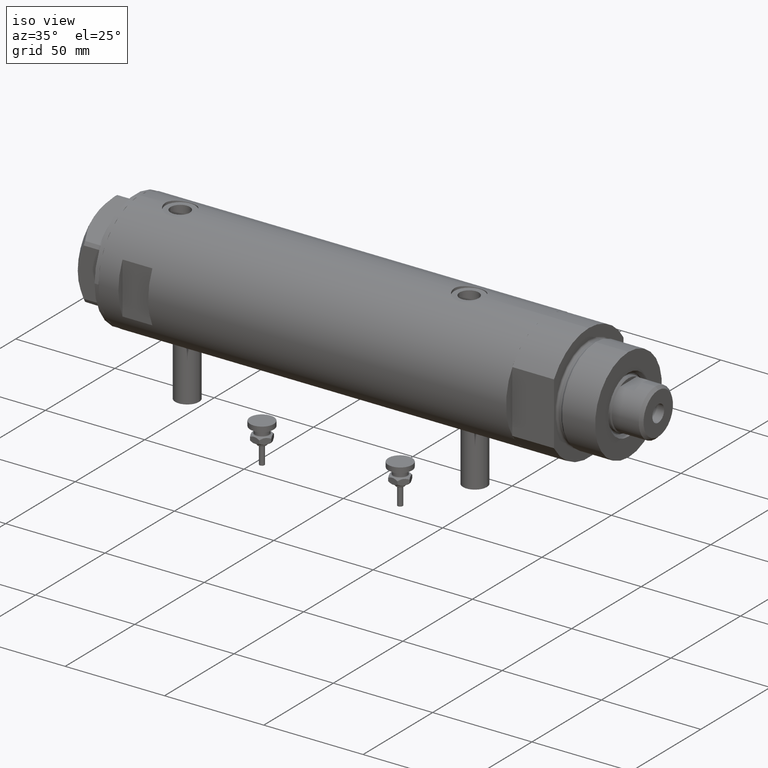
[diagram: clean part render]
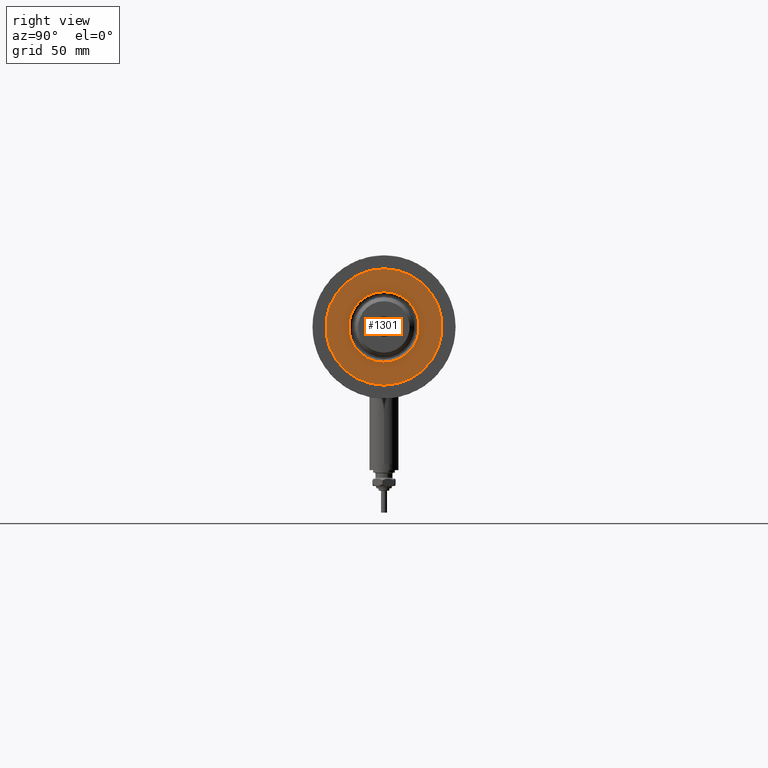
[diagram: tour spotlight — one face highlighted and labeled with its STEP entity id]
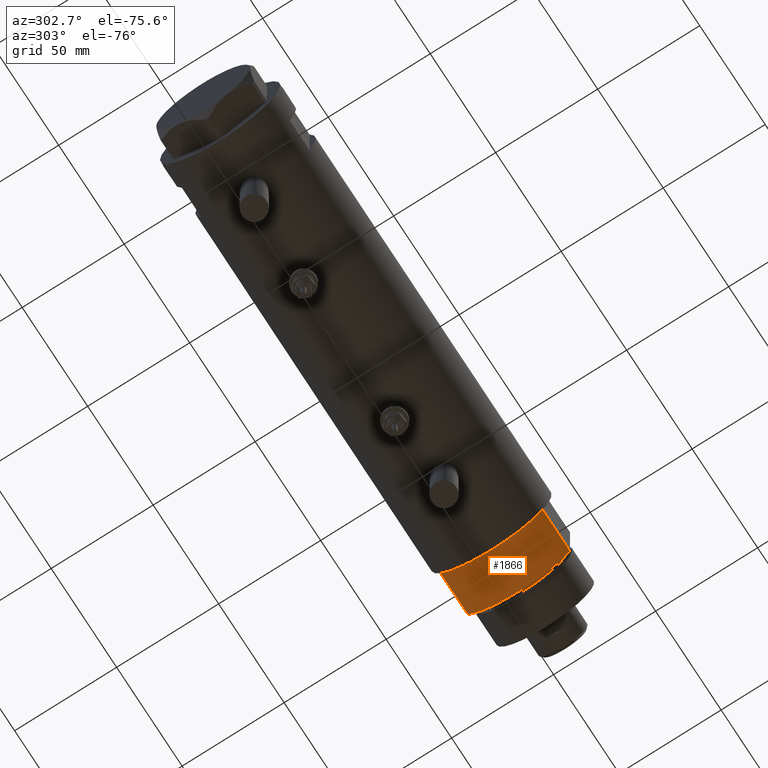
[diagram: tour spotlight — one face highlighted and labeled with its STEP entity id]
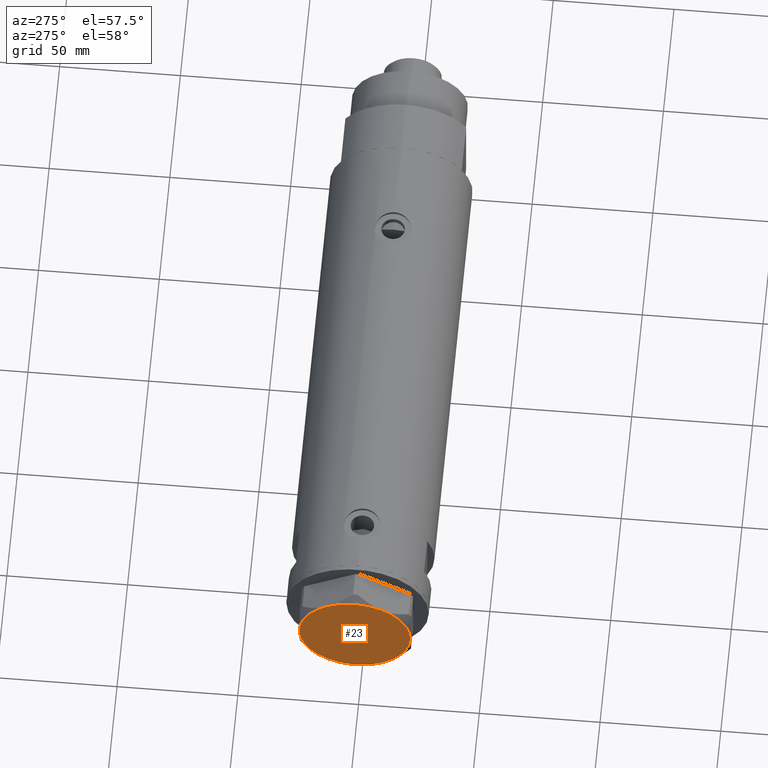
[diagram: tour spotlight — one face highlighted and labeled with its STEP entity id]
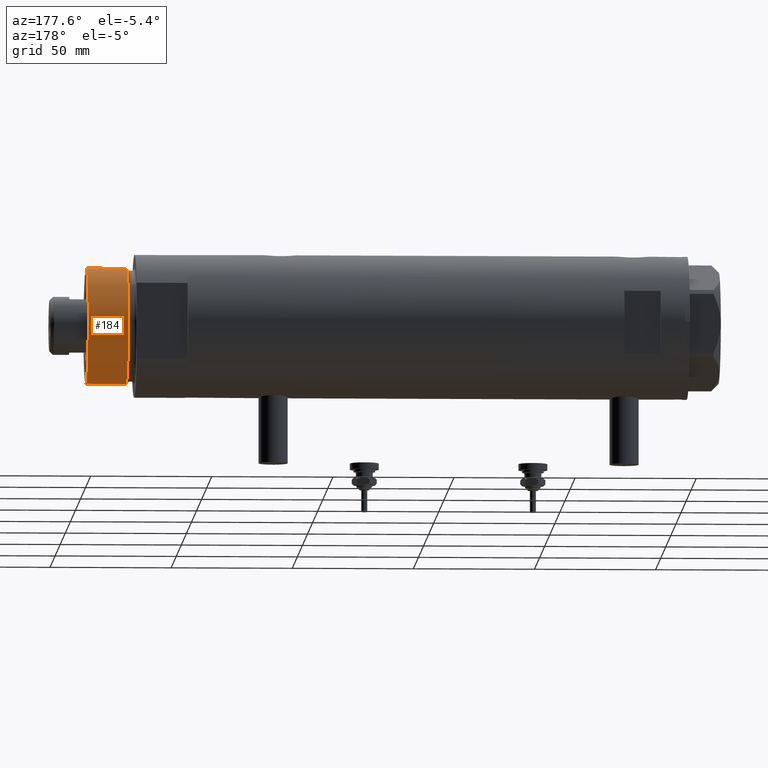
[diagram: tour spotlight — one face highlighted and labeled with its STEP entity id]
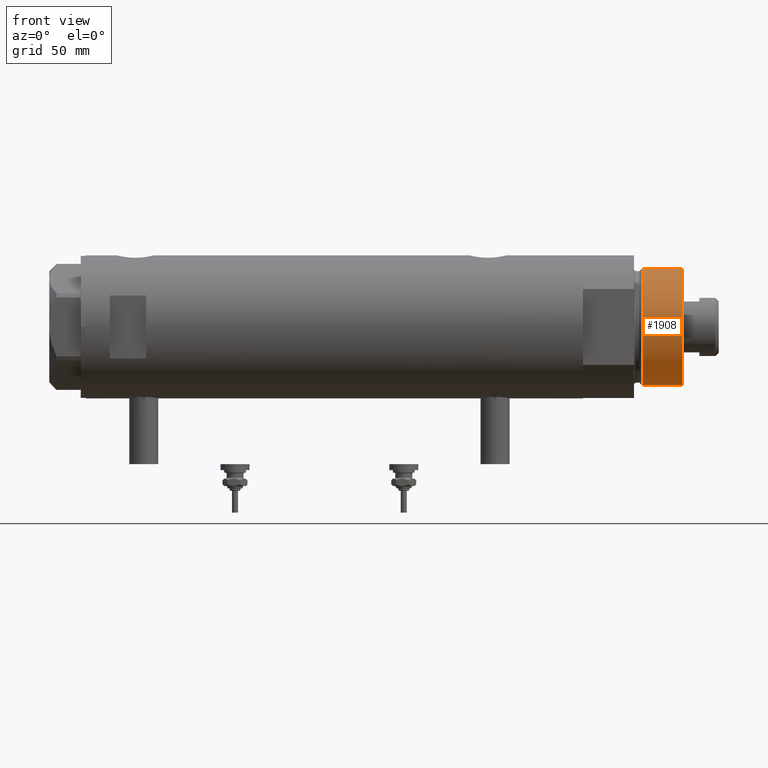
[diagram: tour spotlight — one face highlighted and labeled with its STEP entity id]
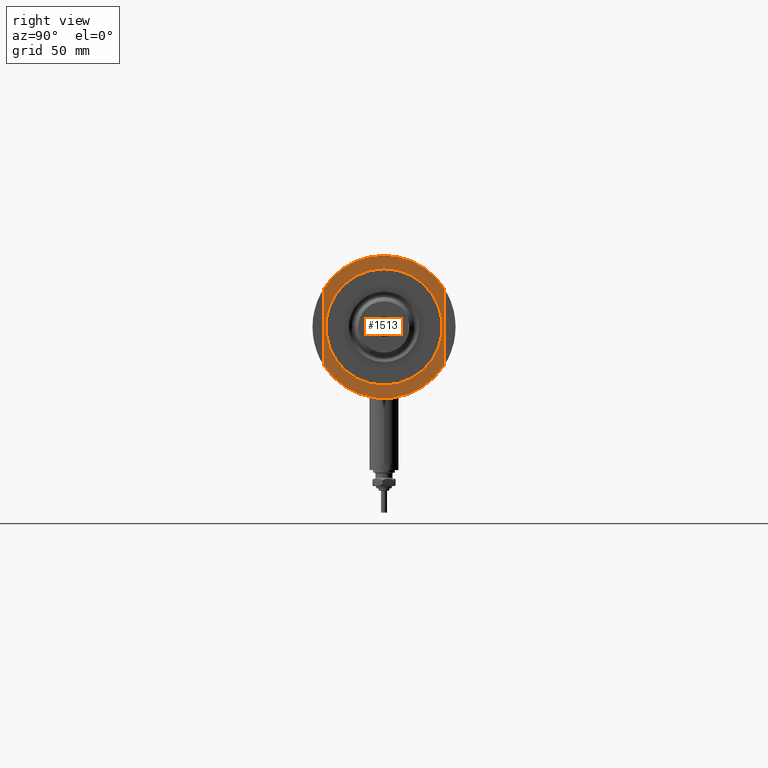
[diagram: tour spotlight — one face highlighted and labeled with its STEP entity id]
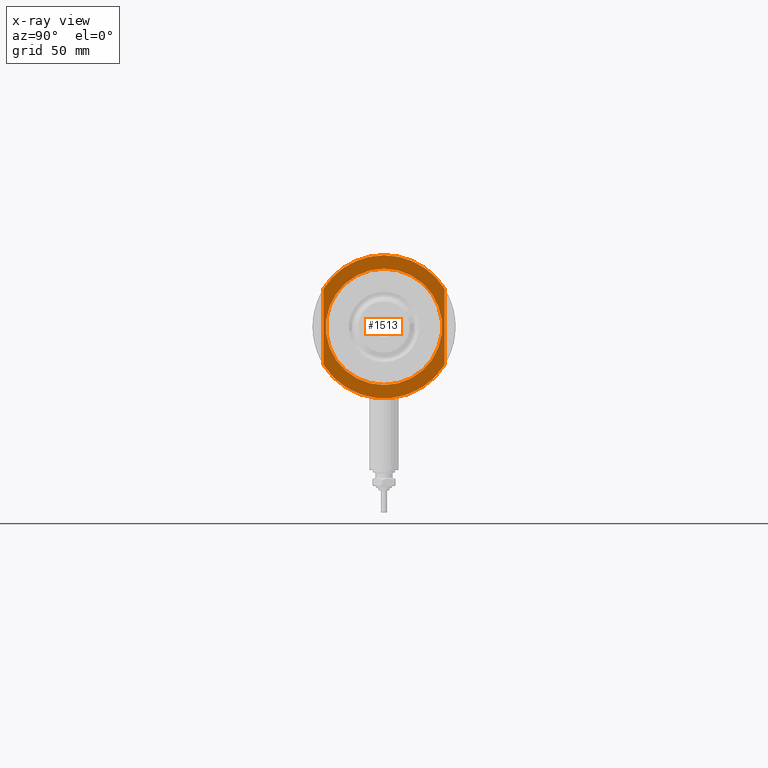
[diagram: x-ray of the same camera — body ghosted, this tour face saturated]
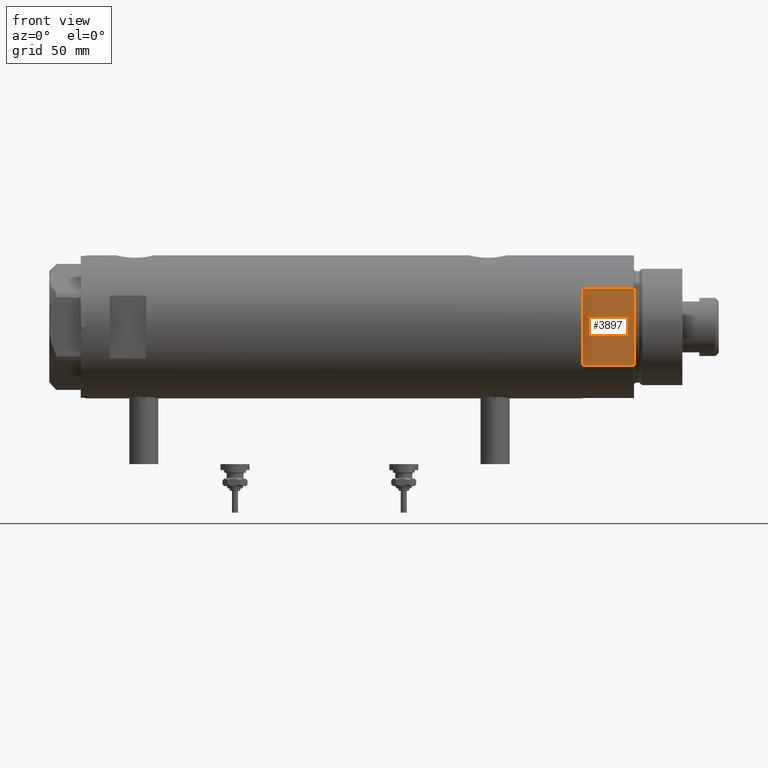
[diagram: tour spotlight — one face highlighted and labeled with its STEP entity id]
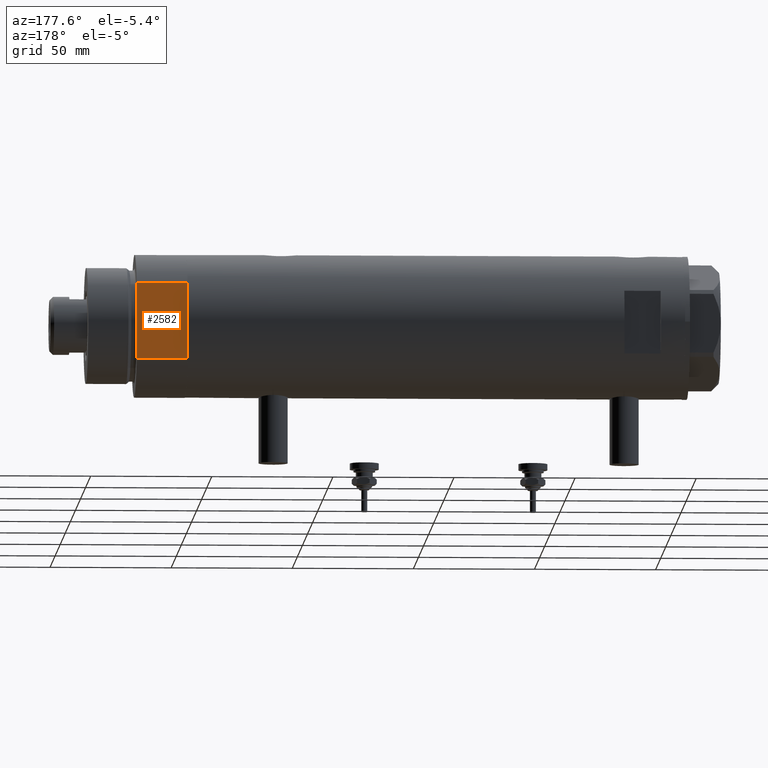
[diagram: tour spotlight — one face highlighted and labeled with its STEP entity id]
A machine part: a face-by-face anatomy tour. The part has 212 B-rep faces; the first image is the clean iso view, then the 8 largest visible faces are spotlighted one at a time (largest first), each with its STEP entity span.

Face 1 — right view, entity #1301. In plain terms, the highlighted planar face has unit normal (1, 0, -0).
Definition (entity closure, byte-faithful):
#131 = FACE_BOUND ( 'NONE', #3954, .T. ) ;
#237 = DIRECTION ( 'NONE',  ( 0.000000000000000000, 0.000000000000000000, 1.000000000000000000 ) ) ;
#608 = CARTESIAN_POINT ( 'NONE',  ( 14.54999999999997939, 0.000000000000000000, 41.00000000000000000 ) ) ;
#717 = DIRECTION ( 'NONE',  ( 1.000000000000000000, 0.000000000000000000, 0.000000000000000000 ) ) ;
#769 = CIRCLE ( 'NONE', #1874, 14.54999999999997939 ) ;
#851 = CIRCLE ( 'NONE', #3218, 14.54999999999997939 ) ;
#1301 = ADVANCED_FACE ( 'NONE', ( #131, #5593 ), #2434, .T. ) ;
#1467 = CARTESIAN_POINT ( 'NONE',  ( 0.000000000000000000, 0.000000000000000000, 41.00000000000000000 ) ) ;
#1539 = ORIENTED_EDGE ( 'NONE', *, *, #2952, .T. ) ;
#1598 = CIRCLE ( 'NONE', #4926, 24.00000000000000355 ) ;
#1623 = CARTESIAN_POINT ( 'NONE',  ( 0.000000000000000000, 0.000000000000000000, 41.00000000000000000 ) ) ;
#1677 = EDGE_CURVE ( 'NONE', #3141, #5667, #2190, .T. ) ;
#1724 = DIRECTION ( 'NONE',  ( 0.000000000000000000, 0.000000000000000000, 1.000000000000000000 ) ) ;
#1747 = VERTEX_POINT ( 'NONE', #4541 ) ;
#1790 = CARTESIAN_POINT ( 'NONE',  ( 0.000000000000000000, 0.000000000000000000, 41.00000000000000000 ) ) ;
#1796 = ORIENTED_EDGE ( 'NONE', *, *, #3267, .T. ) ;
#1874 = AXIS2_PLACEMENT_3D ( 'NONE', #1623, #4471, #717 ) ;
#2059 = DIRECTION ( 'NONE',  ( 1.000000000000000000, 0.000000000000000000, 0.000000000000000000 ) ) ;
#2190 = CIRCLE ( 'NONE', #4755, 24.00000000000000355 ) ;
#2279 = ORIENTED_EDGE ( 'NONE', *, *, #2518, .T. ) ;
#2434 = PLANE ( 'NONE',  #4089 ) ;
#2518 = EDGE_CURVE ( 'NONE', #1747, #2779, #769, .T. ) ;
#2779 = VERTEX_POINT ( 'NONE', #608 ) ;
#2952 = EDGE_CURVE ( 'NONE', #5667, #3141, #1598, .T. ) ;
#3140 = DIRECTION ( 'NONE',  ( 1.000000000000000000, 0.000000000000000000, 0.000000000000000000 ) ) ;
#3141 = VERTEX_POINT ( 'NONE', #3800 ) ;
#3218 = AXIS2_PLACEMENT_3D ( 'NONE', #5860, #4427, #5341 ) ;
#3267 = EDGE_CURVE ( 'NONE', #2779, #1747, #851, .T. ) ;
#3800 = CARTESIAN_POINT ( 'NONE',  ( -24.00000000000000355, 0.000000000000000000, 41.00000000000000000 ) ) ;
#3954 = EDGE_LOOP ( 'NONE', ( #1796, #2279 ) ) ;
#4089 = AXIS2_PLACEMENT_3D ( 'NONE', #1467, #4698, #5192 ) ;
#4343 = ORIENTED_EDGE ( 'NONE', *, *, #1677, .T. ) ;
#4427 = DIRECTION ( 'NONE',  ( -0.000000000000000000, -0.000000000000000000, -1.000000000000000000 ) ) ;
#4471 = DIRECTION ( 'NONE',  ( -0.000000000000000000, -0.000000000000000000, -1.000000000000000000 ) ) ;
#4541 = CARTESIAN_POINT ( 'NONE',  ( -14.54999999999997939, 1.781861092759396721E-15, 41.00000000000000000 ) ) ;
#4698 = DIRECTION ( 'NONE',  ( 0.000000000000000000, 0.000000000000000000, 1.000000000000000000 ) ) ;
#4755 = AXIS2_PLACEMENT_3D ( 'NONE', #4912, #1724, #3140 ) ;
#4912 = CARTESIAN_POINT ( 'NONE',  ( 0.000000000000000000, 0.000000000000000000, 41.00000000000000000 ) ) ;
#4926 = AXIS2_PLACEMENT_3D ( 'NONE', #1790, #237, #2059 ) ;
#5192 = DIRECTION ( 'NONE',  ( 1.000000000000000000, 0.000000000000000000, -0.000000000000000000 ) ) ;
#5341 = DIRECTION ( 'NONE',  ( 1.000000000000000000, 0.000000000000000000, 0.000000000000000000 ) ) ;
#5485 = CARTESIAN_POINT ( 'NONE',  ( 24.00000000000000355, 2.939152317953648289E-15, 41.00000000000000000 ) ) ;
#5593 = FACE_OUTER_BOUND ( 'NONE', #5815, .T. ) ;
#5667 = VERTEX_POINT ( 'NONE', #5485 ) ;
#5815 = EDGE_LOOP ( 'NONE', ( #4343, #1539 ) ) ;
#5860 = CARTESIAN_POINT ( 'NONE',  ( 0.000000000000000000, 0.000000000000000000, 41.00000000000000000 ) ) ;

Face 2 — auxiliary view, entity #1866. In plain terms, the highlighted cylindrical surface (partial cylindrical patch) has radius 29.5 mm, axis along (-1, -0, 0).
Definition (entity closure, byte-faithful):
#39 = CARTESIAN_POINT ( 'NONE',  ( 0.000000000000000000, 0.000000000000000000, 0.000000000000000000 ) ) ;
#105 = CARTESIAN_POINT ( 'NONE',  ( 15.66045976336583401, -25.00000000000000000, 0.000000000000000000 ) ) ;
#315 = DIRECTION ( 'NONE',  ( 1.000000000000000000, 0.000000000000000000, 0.000000000000000000 ) ) ;
#377 = DIRECTION ( 'NONE',  ( 0.000000000000000000, 0.000000000000000000, 1.000000000000000000 ) ) ;
#417 = VERTEX_POINT ( 'NONE', #4877 ) ;
#507 = CARTESIAN_POINT ( 'NONE',  ( 15.66045976336582690, 25.00000000000000000, 0.000000000000000000 ) ) ;
#549 = DIRECTION ( 'NONE',  ( -0.000000000000000000, -0.000000000000000000, -1.000000000000000000 ) ) ;
#643 = FACE_OUTER_BOUND ( 'NONE', #3332, .T. ) ;
#1086 = ORIENTED_EDGE ( 'NONE', *, *, #4707, .F. ) ;
#1339 = AXIS2_PLACEMENT_3D ( 'NONE', #3059, #377, #315 ) ;
#1440 = VERTEX_POINT ( 'NONE', #105 ) ;
#1772 = LINE ( 'NONE', #3213, #2095 ) ;
#1847 = DIRECTION ( 'NONE',  ( 0.000000000000000000, 0.000000000000000000, 1.000000000000000000 ) ) ;
#1866 = ADVANCED_FACE ( 'NONE', ( #643 ), #3283, .T. ) ;
#1939 = ORIENTED_EDGE ( 'NONE', *, *, #3277, .F. ) ;
#2095 = VECTOR ( 'NONE', #5054, 1000.000000000000000 ) ;
#2429 = CARTESIAN_POINT ( 'NONE',  ( 0.000000000000000000, 0.000000000000000000, 21.00000000000000000 ) ) ;
#2586 = CARTESIAN_POINT ( 'NONE',  ( 15.66045976336583401, -25.00000000000000000, 0.000000000000000000 ) ) ;
#2987 = CARTESIAN_POINT ( 'NONE',  ( 15.66045976336583045, -25.00000000000000000, 21.00000000000000355 ) ) ;
#3041 = VERTEX_POINT ( 'NONE', #507 ) ;
#3059 = CARTESIAN_POINT ( 'NONE',  ( 0.000000000000000000, 0.000000000000000000, 21.00000000000000000 ) ) ;
#3213 = CARTESIAN_POINT ( 'NONE',  ( 15.66045976336583401, 25.00000000000000000, 0.000000000000000000 ) ) ;
#3277 = EDGE_CURVE ( 'NONE', #4163, #417, #4743, .T. ) ;
#3283 = CYLINDRICAL_SURFACE ( 'NONE', #5829, 29.50000000000000355 ) ;
#3313 = EDGE_CURVE ( 'NONE', #1440, #3041, #5239, .T. ) ;
#3332 = EDGE_LOOP ( 'NONE', ( #1939, #1086, #3712, #5016 ) ) ;
#3712 = ORIENTED_EDGE ( 'NONE', *, *, #3313, .T. ) ;
#3734 = DIRECTION ( 'NONE',  ( -1.000000000000000000, 0.000000000000000000, 0.000000000000000000 ) ) ;
#3864 = LINE ( 'NONE', #2586, #5924 ) ;
#3892 = DIRECTION ( 'NONE',  ( -0.000000000000000000, -0.000000000000000000, 1.000000000000000000 ) ) ;
#4150 = DIRECTION ( 'NONE',  ( 1.000000000000000000, 0.000000000000000000, 0.000000000000000000 ) ) ;
#4163 = VERTEX_POINT ( 'NONE', #2987 ) ;
#4331 = EDGE_CURVE ( 'NONE', #3041, #417, #1772, .T. ) ;
#4707 = EDGE_CURVE ( 'NONE', #1440, #4163, #3864, .T. ) ;
#4743 = CIRCLE ( 'NONE', #1339, 29.50000000000000355 ) ;
#4877 = CARTESIAN_POINT ( 'NONE',  ( 15.66045976336583045, 24.99999999999999645, 20.99999999999999645 ) ) ;
#4947 = AXIS2_PLACEMENT_3D ( 'NONE', #39, #1847, #4150 ) ;
#5016 = ORIENTED_EDGE ( 'NONE', *, *, #4331, .T. ) ;
#5054 = DIRECTION ( 'NONE',  ( -0.000000000000000000, -0.000000000000000000, 1.000000000000000000 ) ) ;
#5239 = CIRCLE ( 'NONE', #4947, 29.50000000000000355 ) ;
#5829 = AXIS2_PLACEMENT_3D ( 'NONE', #2429, #549, #3734 ) ;
#5924 = VECTOR ( 'NONE', #3892, 1000.000000000000000 ) ;

Face 3 — auxiliary view, entity #23. In plain terms, the highlighted planar face has unit normal (-1, -0, 0).
Definition (entity closure, byte-faithful):
#9 = EDGE_CURVE ( 'NONE', #5252, #21, #4737, .T. ) ;
#21 = VERTEX_POINT ( 'NONE', #1585 ) ;
#23 = ADVANCED_FACE ( 'NONE', ( #2503 ), #3003, .T. ) ;
#56 = DIRECTION ( 'NONE',  ( 0.000000000000000000, 0.000000000000000000, 1.000000000000000000 ) ) ;
#124 = CARTESIAN_POINT ( 'NONE',  ( -11.50000000000004441, 19.91858428704211548, 13.00000000000000000 ) ) ;
#323 = ORIENTED_EDGE ( 'NONE', *, *, #841, .T. ) ;
#580 = DIRECTION ( 'NONE',  ( 0.000000000000000000, 0.000000000000000000, 1.000000000000000000 ) ) ;
#841 = EDGE_CURVE ( 'NONE', #2939, #875, #2938, .T. ) ;
#875 = VERTEX_POINT ( 'NONE', #4959 ) ;
#997 = ORIENTED_EDGE ( 'NONE', *, *, #5637, .T. ) ;
#1052 = CIRCLE ( 'NONE', #1712, 23.00000000000004619 ) ;
#1057 = CIRCLE ( 'NONE', #1159, 23.00000000000004619 ) ;
#1159 = AXIS2_PLACEMENT_3D ( 'NONE', #1983, #580, #2396 ) ;
#1201 = DIRECTION ( 'NONE',  ( 1.000000000000000000, 0.000000000000000000, 0.000000000000000000 ) ) ;
#1585 = CARTESIAN_POINT ( 'NONE',  ( 11.49999999999990408, 19.91858428704219364, 13.00000000000000000 ) ) ;
#1712 = AXIS2_PLACEMENT_3D ( 'NONE', #2098, #3971, #3049 ) ;
#1887 = DIRECTION ( 'NONE',  ( 1.000000000000000000, 0.000000000000000000, 0.000000000000000000 ) ) ;
#1983 = CARTESIAN_POINT ( 'NONE',  ( 0.000000000000000000, 0.000000000000000000, 13.00000000000000000 ) ) ;
#1997 = CARTESIAN_POINT ( 'NONE',  ( 0.000000000000000000, 0.000000000000000000, 13.00000000000000000 ) ) ;
#2098 = CARTESIAN_POINT ( 'NONE',  ( 0.000000000000000000, 0.000000000000000000, 13.00000000000000000 ) ) ;
#2169 = AXIS2_PLACEMENT_3D ( 'NONE', #4368, #4253, #3801 ) ;
#2185 = ORIENTED_EDGE ( 'NONE', *, *, #3899, .T. ) ;
#2186 = AXIS2_PLACEMENT_3D ( 'NONE', #3190, #56, #1887 ) ;
#2396 = DIRECTION ( 'NONE',  ( 1.000000000000000000, 0.000000000000000000, 0.000000000000000000 ) ) ;
#2467 = VERTEX_POINT ( 'NONE', #2683 ) ;
#2480 = CARTESIAN_POINT ( 'NONE',  ( 0.000000000000000000, 0.000000000000000000, 13.00000000000000000 ) ) ;
#2503 = FACE_OUTER_BOUND ( 'NONE', #2667, .T. ) ;
#2667 = EDGE_LOOP ( 'NONE', ( #997, #5319, #3297, #2734, #323, #2185 ) ) ;
#2680 = AXIS2_PLACEMENT_3D ( 'NONE', #4307, #4033, #3967 ) ;
#2683 = CARTESIAN_POINT ( 'NONE',  ( 11.50000000000018296, -19.91858428704203732, 13.00000000000000000 ) ) ;
#2734 = ORIENTED_EDGE ( 'NONE', *, *, #3594, .T. ) ;
#2753 = CIRCLE ( 'NONE', #2186, 23.00000000000004619 ) ;
#2770 = CIRCLE ( 'NONE', #2680, 23.00000000000004619 ) ;
#2938 = CIRCLE ( 'NONE', #4950, 23.00000000000004619 ) ;
#2939 = VERTEX_POINT ( 'NONE', #4776 ) ;
#3003 = PLANE ( 'NONE',  #2169 ) ;
#3049 = DIRECTION ( 'NONE',  ( 1.000000000000000000, 0.000000000000000000, 0.000000000000000000 ) ) ;
#3190 = CARTESIAN_POINT ( 'NONE',  ( 0.000000000000000000, 0.000000000000000000, 13.00000000000000000 ) ) ;
#3297 = ORIENTED_EDGE ( 'NONE', *, *, #3972, .T. ) ;
#3496 = AXIS2_PLACEMENT_3D ( 'NONE', #1997, #4825, #1201 ) ;
#3594 = EDGE_CURVE ( 'NONE', #5413, #2939, #1052, .T. ) ;
#3801 = DIRECTION ( 'NONE',  ( 1.000000000000000000, 0.000000000000000000, -0.000000000000000000 ) ) ;
#3813 = DIRECTION ( 'NONE',  ( 1.000000000000000000, 0.000000000000000000, 0.000000000000000000 ) ) ;
#3899 = EDGE_CURVE ( 'NONE', #875, #2467, #2753, .T. ) ;
#3967 = DIRECTION ( 'NONE',  ( 1.000000000000000000, 0.000000000000000000, 0.000000000000000000 ) ) ;
#3971 = DIRECTION ( 'NONE',  ( 0.000000000000000000, 0.000000000000000000, 1.000000000000000000 ) ) ;
#3972 = EDGE_CURVE ( 'NONE', #21, #5413, #1057, .T. ) ;
#4033 = DIRECTION ( 'NONE',  ( 0.000000000000000000, 0.000000000000000000, 1.000000000000000000 ) ) ;
#4038 = CARTESIAN_POINT ( 'NONE',  ( 22.99999999999995026, 2.373657066004705010E-13, 13.00000000000000000 ) ) ;
#4253 = DIRECTION ( 'NONE',  ( 0.000000000000000000, 0.000000000000000000, 1.000000000000000000 ) ) ;
#4298 = DIRECTION ( 'NONE',  ( 0.000000000000000000, 0.000000000000000000, 1.000000000000000000 ) ) ;
#4307 = CARTESIAN_POINT ( 'NONE',  ( 0.000000000000000000, 0.000000000000000000, 13.00000000000000000 ) ) ;
#4368 = CARTESIAN_POINT ( 'NONE',  ( 0.000000000000000000, 0.000000000000000000, 13.00000000000000000 ) ) ;
#4737 = CIRCLE ( 'NONE', #3496, 23.00000000000004619 ) ;
#4776 = CARTESIAN_POINT ( 'NONE',  ( -23.00000000000004619, -8.112498833180673323E-14, 13.00000000000000000 ) ) ;
#4825 = DIRECTION ( 'NONE',  ( 0.000000000000000000, 0.000000000000000000, 1.000000000000000000 ) ) ;
#4950 = AXIS2_PLACEMENT_3D ( 'NONE', #2480, #4298, #3813 ) ;
#4959 = CARTESIAN_POINT ( 'NONE',  ( -11.49999999999990585, -19.91858428704219364, 13.00000000000000000 ) ) ;
#5252 = VERTEX_POINT ( 'NONE', #4038 ) ;
#5319 = ORIENTED_EDGE ( 'NONE', *, *, #9, .T. ) ;
#5413 = VERTEX_POINT ( 'NONE', #124 ) ;
#5637 = EDGE_CURVE ( 'NONE', #2467, #5252, #2770, .T. ) ;

Face 4 — auxiliary view, entity #184. In plain terms, the highlighted cylindrical surface (partial cylindrical patch) has radius 24 mm, axis along (-1, -0, 0).
Definition (entity closure, byte-faithful):
#35 = DIRECTION ( 'NONE',  ( -0.000000000000000000, -0.000000000000000000, -1.000000000000000000 ) ) ;
#143 = ORIENTED_EDGE ( 'NONE', *, *, #2952, .F. ) ;
#184 = ADVANCED_FACE ( 'NONE', ( #1346 ), #2643, .T. ) ;
#237 = DIRECTION ( 'NONE',  ( 0.000000000000000000, 0.000000000000000000, 1.000000000000000000 ) ) ;
#264 = CARTESIAN_POINT ( 'NONE',  ( -24.00000000000000355, 0.000000000000000000, 24.37384048104054557 ) ) ;
#283 = DIRECTION ( 'NONE',  ( -0.000000000000000000, -0.000000000000000000, 1.000000000000000000 ) ) ;
#341 = DIRECTION ( 'NONE',  ( -1.000000000000000000, 0.000000000000000000, 0.000000000000000000 ) ) ;
#472 = VERTEX_POINT ( 'NONE', #264 ) ;
#483 = VECTOR ( 'NONE', #1340, 1000.000000000000000 ) ;
#495 = LINE ( 'NONE', #5430, #483 ) ;
#1236 = ORIENTED_EDGE ( 'NONE', *, *, #5418, .F. ) ;
#1340 = DIRECTION ( 'NONE',  ( -0.000000000000000000, -0.000000000000000000, -1.000000000000000000 ) ) ;
#1346 = FACE_OUTER_BOUND ( 'NONE', #5019, .T. ) ;
#1353 = CIRCLE ( 'NONE', #3611, 24.00000000000000355 ) ;
#1422 = AXIS2_PLACEMENT_3D ( 'NONE', #4889, #5825, #341 ) ;
#1598 = CIRCLE ( 'NONE', #4926, 24.00000000000000355 ) ;
#1790 = CARTESIAN_POINT ( 'NONE',  ( 0.000000000000000000, 0.000000000000000000, 41.00000000000000000 ) ) ;
#2059 = DIRECTION ( 'NONE',  ( 1.000000000000000000, 0.000000000000000000, 0.000000000000000000 ) ) ;
#2554 = CARTESIAN_POINT ( 'NONE',  ( 0.000000000000000000, 0.000000000000000000, 24.37384048104054557 ) ) ;
#2643 = CYLINDRICAL_SURFACE ( 'NONE', #1422, 24.00000000000000355 ) ;
#2952 = EDGE_CURVE ( 'NONE', #5667, #3141, #1598, .T. ) ;
#3141 = VERTEX_POINT ( 'NONE', #3800 ) ;
#3611 = AXIS2_PLACEMENT_3D ( 'NONE', #2554, #283, #4799 ) ;
#3784 = LINE ( 'NONE', #5118, #5559 ) ;
#3800 = CARTESIAN_POINT ( 'NONE',  ( -24.00000000000000355, 0.000000000000000000, 41.00000000000000000 ) ) ;
#4145 = CARTESIAN_POINT ( 'NONE',  ( 24.00000000000000355, 2.939152317953648289E-15, 24.37384048104054557 ) ) ;
#4467 = ORIENTED_EDGE ( 'NONE', *, *, #4628, .T. ) ;
#4628 = EDGE_CURVE ( 'NONE', #5390, #472, #1353, .T. ) ;
#4799 = DIRECTION ( 'NONE',  ( 1.000000000000000000, 0.000000000000000000, 0.000000000000000000 ) ) ;
#4889 = CARTESIAN_POINT ( 'NONE',  ( 0.000000000000000000, 0.000000000000000000, 41.00000000000000000 ) ) ;
#4926 = AXIS2_PLACEMENT_3D ( 'NONE', #1790, #237, #2059 ) ;
#5019 = EDGE_LOOP ( 'NONE', ( #143, #5751, #4467, #1236 ) ) ;
#5118 = CARTESIAN_POINT ( 'NONE',  ( -24.00000000000000355, 0.000000000000000000, 41.00000000000000000 ) ) ;
#5266 = EDGE_CURVE ( 'NONE', #5667, #5390, #495, .T. ) ;
#5390 = VERTEX_POINT ( 'NONE', #4145 ) ;
#5418 = EDGE_CURVE ( 'NONE', #3141, #472, #3784, .T. ) ;
#5430 = CARTESIAN_POINT ( 'NONE',  ( 24.00000000000000355, 2.939152317953648289E-15, 41.00000000000000000 ) ) ;
#5485 = CARTESIAN_POINT ( 'NONE',  ( 24.00000000000000355, 2.939152317953648289E-15, 41.00000000000000000 ) ) ;
#5559 = VECTOR ( 'NONE', #35, 1000.000000000000000 ) ;
#5667 = VERTEX_POINT ( 'NONE', #5485 ) ;
#5751 = ORIENTED_EDGE ( 'NONE', *, *, #5266, .T. ) ;
#5825 = DIRECTION ( 'NONE',  ( -0.000000000000000000, -0.000000000000000000, -1.000000000000000000 ) ) ;

Face 5 — front view, entity #1908. In plain terms, the highlighted cylindrical surface (partial cylindrical patch) has radius 24 mm, axis along (-1, -0, 0).
Definition (entity closure, byte-faithful):
#35 = DIRECTION ( 'NONE',  ( -0.000000000000000000, -0.000000000000000000, -1.000000000000000000 ) ) ;
#41 = DIRECTION ( 'NONE',  ( 1.000000000000000000, 0.000000000000000000, 0.000000000000000000 ) ) ;
#264 = CARTESIAN_POINT ( 'NONE',  ( -24.00000000000000355, 0.000000000000000000, 24.37384048104054557 ) ) ;
#472 = VERTEX_POINT ( 'NONE', #264 ) ;
#483 = VECTOR ( 'NONE', #1340, 1000.000000000000000 ) ;
#495 = LINE ( 'NONE', #5430, #483 ) ;
#523 = DIRECTION ( 'NONE',  ( -0.000000000000000000, -0.000000000000000000, -1.000000000000000000 ) ) ;
#1099 = EDGE_LOOP ( 'NONE', ( #1947, #3839, #5452, #2593 ) ) ;
#1340 = DIRECTION ( 'NONE',  ( -0.000000000000000000, -0.000000000000000000, -1.000000000000000000 ) ) ;
#1677 = EDGE_CURVE ( 'NONE', #3141, #5667, #2190, .T. ) ;
#1724 = DIRECTION ( 'NONE',  ( 0.000000000000000000, 0.000000000000000000, 1.000000000000000000 ) ) ;
#1786 = CARTESIAN_POINT ( 'NONE',  ( 0.000000000000000000, 0.000000000000000000, 24.37384048104054557 ) ) ;
#1908 = ADVANCED_FACE ( 'NONE', ( #2788 ), #2365, .T. ) ;
#1947 = ORIENTED_EDGE ( 'NONE', *, *, #5266, .F. ) ;
#2190 = CIRCLE ( 'NONE', #4755, 24.00000000000000355 ) ;
#2339 = DIRECTION ( 'NONE',  ( -1.000000000000000000, 0.000000000000000000, 0.000000000000000000 ) ) ;
#2365 = CYLINDRICAL_SURFACE ( 'NONE', #4784, 24.00000000000000355 ) ;
#2399 = CARTESIAN_POINT ( 'NONE',  ( 0.000000000000000000, 0.000000000000000000, 41.00000000000000000 ) ) ;
#2593 = ORIENTED_EDGE ( 'NONE', *, *, #4858, .T. ) ;
#2788 = FACE_OUTER_BOUND ( 'NONE', #1099, .T. ) ;
#3140 = DIRECTION ( 'NONE',  ( 1.000000000000000000, 0.000000000000000000, 0.000000000000000000 ) ) ;
#3141 = VERTEX_POINT ( 'NONE', #3800 ) ;
#3784 = LINE ( 'NONE', #5118, #5559 ) ;
#3800 = CARTESIAN_POINT ( 'NONE',  ( -24.00000000000000355, 0.000000000000000000, 41.00000000000000000 ) ) ;
#3839 = ORIENTED_EDGE ( 'NONE', *, *, #1677, .F. ) ;
#4145 = CARTESIAN_POINT ( 'NONE',  ( 24.00000000000000355, 2.939152317953648289E-15, 24.37384048104054557 ) ) ;
#4519 = DIRECTION ( 'NONE',  ( -0.000000000000000000, -0.000000000000000000, 1.000000000000000000 ) ) ;
#4755 = AXIS2_PLACEMENT_3D ( 'NONE', #4912, #1724, #3140 ) ;
#4765 = AXIS2_PLACEMENT_3D ( 'NONE', #1786, #4519, #41 ) ;
#4784 = AXIS2_PLACEMENT_3D ( 'NONE', #2399, #523, #2339 ) ;
#4858 = EDGE_CURVE ( 'NONE', #472, #5390, #5460, .T. ) ;
#4912 = CARTESIAN_POINT ( 'NONE',  ( 0.000000000000000000, 0.000000000000000000, 41.00000000000000000 ) ) ;
#5118 = CARTESIAN_POINT ( 'NONE',  ( -24.00000000000000355, 0.000000000000000000, 41.00000000000000000 ) ) ;
#5266 = EDGE_CURVE ( 'NONE', #5667, #5390, #495, .T. ) ;
#5390 = VERTEX_POINT ( 'NONE', #4145 ) ;
#5418 = EDGE_CURVE ( 'NONE', #3141, #472, #3784, .T. ) ;
#5430 = CARTESIAN_POINT ( 'NONE',  ( 24.00000000000000355, 2.939152317953648289E-15, 41.00000000000000000 ) ) ;
#5452 = ORIENTED_EDGE ( 'NONE', *, *, #5418, .T. ) ;
#5460 = CIRCLE ( 'NONE', #4765, 24.00000000000000355 ) ;
#5485 = CARTESIAN_POINT ( 'NONE',  ( 24.00000000000000355, 2.939152317953648289E-15, 41.00000000000000000 ) ) ;
#5559 = VECTOR ( 'NONE', #35, 1000.000000000000000 ) ;
#5667 = VERTEX_POINT ( 'NONE', #5485 ) ;

Face 6 — right view, entity #1513. An x-ray twin of the same camera follows (body ghosted, this face saturated) — the face is partly hidden behind the body. In plain terms, the highlighted planar face has unit normal (1, 0, -0).
Definition (entity closure, byte-faithful):
#19 = CARTESIAN_POINT ( 'NONE',  ( 0.000000000000000000, 0.000000000000000000, 21.00000000000000000 ) ) ;
#106 = ORIENTED_EDGE ( 'NONE', *, *, #550, .T. ) ;
#161 = DIRECTION ( 'NONE',  ( -0.000000000000000000, -0.000000000000000000, -1.000000000000000000 ) ) ;
#202 = CARTESIAN_POINT ( 'NONE',  ( 0.000000000000000000, 0.000000000000000000, 21.00000000000000000 ) ) ;
#315 = DIRECTION ( 'NONE',  ( 1.000000000000000000, 0.000000000000000000, 0.000000000000000000 ) ) ;
#377 = DIRECTION ( 'NONE',  ( 0.000000000000000000, 0.000000000000000000, 1.000000000000000000 ) ) ;
#417 = VERTEX_POINT ( 'NONE', #4877 ) ;
#550 = EDGE_CURVE ( 'NONE', #3220, #1405, #5812, .T. ) ;
#636 = EDGE_CURVE ( 'NONE', #4163, #3403, #5137, .T. ) ;
#945 = DIRECTION ( 'NONE',  ( 0.000000000000000000, 0.000000000000000000, 1.000000000000000000 ) ) ;
#1047 = AXIS2_PLACEMENT_3D ( 'NONE', #202, #161, #2502 ) ;
#1245 = CARTESIAN_POINT ( 'NONE',  ( -24.00000000000000000, 2.939152317953647894E-15, 21.00000000000000000 ) ) ;
#1339 = AXIS2_PLACEMENT_3D ( 'NONE', #3059, #377, #315 ) ;
#1342 = CARTESIAN_POINT ( 'NONE',  ( 0.000000000000000000, 0.000000000000000000, 21.00000000000000000 ) ) ;
#1394 = DIRECTION ( 'NONE',  ( -0.000000000000000000, -0.000000000000000000, -1.000000000000000000 ) ) ;
#1405 = VERTEX_POINT ( 'NONE', #3707 ) ;
#1462 = CARTESIAN_POINT ( 'NONE',  ( -15.66045976336583045, -24.99999999999999645, 20.99999999999999645 ) ) ;
#1513 = ADVANCED_FACE ( 'NONE', ( #3470, #3945 ), #5217, .T. ) ;
#1639 = DIRECTION ( 'NONE',  ( 0.000000000000000000, 0.000000000000000000, 1.000000000000000000 ) ) ;
#1762 = ORIENTED_EDGE ( 'NONE', *, *, #3101, .T. ) ;
#1766 = EDGE_CURVE ( 'NONE', #1405, #3403, #5253, .T. ) ;
#1811 = AXIS2_PLACEMENT_3D ( 'NONE', #5464, #1394, #5029 ) ;
#1921 = DIRECTION ( 'NONE',  ( 1.000000000000000000, 0.000000000000000000, 0.000000000000000000 ) ) ;
#2179 = DIRECTION ( 'NONE',  ( 1.000000000000000000, 0.000000000000000000, 0.000000000000000000 ) ) ;
#2358 = DIRECTION ( 'NONE',  ( -1.000000000000000000, -0.000000000000000000, -0.000000000000000000 ) ) ;
#2502 = DIRECTION ( 'NONE',  ( 1.000000000000000000, 0.000000000000000000, 0.000000000000000000 ) ) ;
#2652 = AXIS2_PLACEMENT_3D ( 'NONE', #19, #2658, #2179 ) ;
#2658 = DIRECTION ( 'NONE',  ( 0.000000000000000000, 0.000000000000000000, 1.000000000000000000 ) ) ;
#2757 = AXIS2_PLACEMENT_3D ( 'NONE', #4821, #1639, #2969 ) ;
#2808 = ORIENTED_EDGE ( 'NONE', *, *, #1766, .T. ) ;
#2824 = VERTEX_POINT ( 'NONE', #3151 ) ;
#2950 = AXIS2_PLACEMENT_3D ( 'NONE', #1342, #945, #3083 ) ;
#2969 = DIRECTION ( 'NONE',  ( 1.000000000000000000, 0.000000000000000000, -0.000000000000000000 ) ) ;
#2987 = CARTESIAN_POINT ( 'NONE',  ( 15.66045976336583045, -25.00000000000000000, 21.00000000000000355 ) ) ;
#3059 = CARTESIAN_POINT ( 'NONE',  ( 0.000000000000000000, 0.000000000000000000, 21.00000000000000000 ) ) ;
#3083 = DIRECTION ( 'NONE',  ( 1.000000000000000000, 0.000000000000000000, 0.000000000000000000 ) ) ;
#3101 = EDGE_CURVE ( 'NONE', #2824, #3659, #3689, .T. ) ;
#3151 = CARTESIAN_POINT ( 'NONE',  ( 24.00000000000000000, 0.000000000000000000, 21.00000000000000000 ) ) ;
#3220 = VERTEX_POINT ( 'NONE', #5769 ) ;
#3249 = CARTESIAN_POINT ( 'NONE',  ( -15.66045976336583401, 25.00000000000000000, 21.00000000000000000 ) ) ;
#3277 = EDGE_CURVE ( 'NONE', #4163, #417, #4743, .T. ) ;
#3301 = LINE ( 'NONE', #3249, #5173 ) ;
#3394 = ORIENTED_EDGE ( 'NONE', *, *, #5853, .F. ) ;
#3403 = VERTEX_POINT ( 'NONE', #1462 ) ;
#3470 = FACE_BOUND ( 'NONE', #4083, .T. ) ;
#3659 = VERTEX_POINT ( 'NONE', #1245 ) ;
#3689 = CIRCLE ( 'NONE', #1047, 24.00000000000000000 ) ;
#3707 = CARTESIAN_POINT ( 'NONE',  ( -29.50000000000000355, 0.000000000000000000, 21.00000000000000000 ) ) ;
#3896 = CIRCLE ( 'NONE', #1811, 24.00000000000000000 ) ;
#3930 = EDGE_CURVE ( 'NONE', #3659, #2824, #3896, .T. ) ;
#3945 = FACE_OUTER_BOUND ( 'NONE', #4972, .T. ) ;
#4083 = EDGE_LOOP ( 'NONE', ( #1762, #5129 ) ) ;
#4163 = VERTEX_POINT ( 'NONE', #2987 ) ;
#4646 = CARTESIAN_POINT ( 'NONE',  ( -15.66045976336583401, -25.00000000000000000, 21.00000000000000000 ) ) ;
#4743 = CIRCLE ( 'NONE', #1339, 29.50000000000000355 ) ;
#4746 = VECTOR ( 'NONE', #2358, 1000.000000000000000 ) ;
#4821 = CARTESIAN_POINT ( 'NONE',  ( 0.000000000000000000, 0.000000000000000000, 21.00000000000000000 ) ) ;
#4877 = CARTESIAN_POINT ( 'NONE',  ( 15.66045976336583045, 24.99999999999999645, 20.99999999999999645 ) ) ;
#4972 = EDGE_LOOP ( 'NONE', ( #5552, #5356, #3394, #106, #2808 ) ) ;
#5029 = DIRECTION ( 'NONE',  ( 1.000000000000000000, 0.000000000000000000, 0.000000000000000000 ) ) ;
#5129 = ORIENTED_EDGE ( 'NONE', *, *, #3930, .T. ) ;
#5137 = LINE ( 'NONE', #4646, #4746 ) ;
#5173 = VECTOR ( 'NONE', #1921, 1000.000000000000000 ) ;
#5217 = PLANE ( 'NONE',  #2757 ) ;
#5253 = CIRCLE ( 'NONE', #2950, 29.50000000000000355 ) ;
#5356 = ORIENTED_EDGE ( 'NONE', *, *, #3277, .T. ) ;
#5464 = CARTESIAN_POINT ( 'NONE',  ( 0.000000000000000000, 0.000000000000000000, 21.00000000000000000 ) ) ;
#5552 = ORIENTED_EDGE ( 'NONE', *, *, #636, .F. ) ;
#5769 = CARTESIAN_POINT ( 'NONE',  ( -15.66045976336583045, 24.99999999999999645, 21.00000000000000355 ) ) ;
#5812 = CIRCLE ( 'NONE', #2652, 29.50000000000000355 ) ;
#5853 = EDGE_CURVE ( 'NONE', #3220, #417, #3301, .T. ) ;

Face 7 — front view, entity #3897. In plain terms, the highlighted planar face has unit normal (-0, 1, 0).
Definition (entity closure, byte-faithful):
#105 = CARTESIAN_POINT ( 'NONE',  ( 15.66045976336583401, -25.00000000000000000, 0.000000000000000000 ) ) ;
#144 = CARTESIAN_POINT ( 'NONE',  ( -15.66045976336583401, -25.00000000000000000, 0.000000000000000000 ) ) ;
#244 = EDGE_CURVE ( 'NONE', #2592, #3403, #3736, .T. ) ;
#520 = DIRECTION ( 'NONE',  ( -0.000000000000000000, 1.000000000000000000, 0.000000000000000000 ) ) ;
#636 = EDGE_CURVE ( 'NONE', #4163, #3403, #5137, .T. ) ;
#727 = EDGE_CURVE ( 'NONE', #1440, #2445, #1505, .T. ) ;
#865 = CARTESIAN_POINT ( 'NONE',  ( 7.141428428542853091, -25.00000000000000000, 0.000000000000000000 ) ) ;
#887 = PLANE ( 'NONE',  #961 ) ;
#961 = AXIS2_PLACEMENT_3D ( 'NONE', #4599, #520, #2336 ) ;
#1147 = VECTOR ( 'NONE', #5194, 1000.000000000000000 ) ;
#1335 = VECTOR ( 'NONE', #3199, 1000.000000000000000 ) ;
#1414 = DIRECTION ( 'NONE',  ( -1.000000000000000000, -0.000000000000000000, -0.000000000000000000 ) ) ;
#1440 = VERTEX_POINT ( 'NONE', #105 ) ;
#1462 = CARTESIAN_POINT ( 'NONE',  ( -15.66045976336583045, -24.99999999999999645, 20.99999999999999645 ) ) ;
#1505 = LINE ( 'NONE', #144, #5817 ) ;
#1676 = CARTESIAN_POINT ( 'NONE',  ( -15.66045976336582690, -25.00000000000000000, 0.000000000000000000 ) ) ;
#2034 = ORIENTED_EDGE ( 'NONE', *, *, #244, .F. ) ;
#2272 = VERTEX_POINT ( 'NONE', #4292 ) ;
#2336 = DIRECTION ( 'NONE',  ( 0.000000000000000000, -0.000000000000000000, 1.000000000000000000 ) ) ;
#2358 = DIRECTION ( 'NONE',  ( -1.000000000000000000, -0.000000000000000000, -0.000000000000000000 ) ) ;
#2445 = VERTEX_POINT ( 'NONE', #865 ) ;
#2586 = CARTESIAN_POINT ( 'NONE',  ( 15.66045976336583401, -25.00000000000000000, 0.000000000000000000 ) ) ;
#2592 = VERTEX_POINT ( 'NONE', #1676 ) ;
#2649 = EDGE_LOOP ( 'NONE', ( #2713, #2034, #5334, #5804, #5134, #4377 ) ) ;
#2713 = ORIENTED_EDGE ( 'NONE', *, *, #636, .T. ) ;
#2987 = CARTESIAN_POINT ( 'NONE',  ( 15.66045976336583045, -25.00000000000000000, 21.00000000000000355 ) ) ;
#3096 = EDGE_CURVE ( 'NONE', #2272, #2592, #4342, .T. ) ;
#3199 = DIRECTION ( 'NONE',  ( -0.000000000000000000, -0.000000000000000000, 1.000000000000000000 ) ) ;
#3403 = VERTEX_POINT ( 'NONE', #1462 ) ;
#3736 = LINE ( 'NONE', #5522, #1335 ) ;
#3864 = LINE ( 'NONE', #2586, #5924 ) ;
#3892 = DIRECTION ( 'NONE',  ( -0.000000000000000000, -0.000000000000000000, 1.000000000000000000 ) ) ;
#3897 = ADVANCED_FACE ( 'NONE', ( #4977 ), #887, .F. ) ;
#4163 = VERTEX_POINT ( 'NONE', #2987 ) ;
#4292 = CARTESIAN_POINT ( 'NONE',  ( -7.141428428542853091, -25.00000000000000000, 0.000000000000000000 ) ) ;
#4342 = LINE ( 'NONE', #5712, #1147 ) ;
#4377 = ORIENTED_EDGE ( 'NONE', *, *, #4707, .T. ) ;
#4599 = CARTESIAN_POINT ( 'NONE',  ( -15.66045976336583401, -25.00000000000000000, 0.000000000000000000 ) ) ;
#4646 = CARTESIAN_POINT ( 'NONE',  ( -15.66045976336583401, -25.00000000000000000, 21.00000000000000000 ) ) ;
#4707 = EDGE_CURVE ( 'NONE', #1440, #4163, #3864, .T. ) ;
#4746 = VECTOR ( 'NONE', #2358, 1000.000000000000000 ) ;
#4977 = FACE_OUTER_BOUND ( 'NONE', #2649, .T. ) ;
#5047 = EDGE_CURVE ( 'NONE', #2445, #2272, #5159, .T. ) ;
#5134 = ORIENTED_EDGE ( 'NONE', *, *, #727, .F. ) ;
#5137 = LINE ( 'NONE', #4646, #4746 ) ;
#5159 = LINE ( 'NONE', #5733, #5651 ) ;
#5194 = DIRECTION ( 'NONE',  ( -1.000000000000000000, -0.000000000000000000, -0.000000000000000000 ) ) ;
#5306 = DIRECTION ( 'NONE',  ( -1.000000000000000000, -0.000000000000000000, -0.000000000000000000 ) ) ;
#5334 = ORIENTED_EDGE ( 'NONE', *, *, #3096, .F. ) ;
#5522 = CARTESIAN_POINT ( 'NONE',  ( -15.66045976336583401, -25.00000000000000000, 0.000000000000000000 ) ) ;
#5651 = VECTOR ( 'NONE', #5306, 1000.000000000000000 ) ;
#5712 = CARTESIAN_POINT ( 'NONE',  ( -15.66045976336583401, -25.00000000000000000, 0.000000000000000000 ) ) ;
#5733 = CARTESIAN_POINT ( 'NONE',  ( -15.66045976336583401, -25.00000000000000000, 0.000000000000000000 ) ) ;
#5804 = ORIENTED_EDGE ( 'NONE', *, *, #5047, .F. ) ;
#5817 = VECTOR ( 'NONE', #1414, 1000.000000000000000 ) ;
#5924 = VECTOR ( 'NONE', #3892, 1000.000000000000000 ) ;

Face 8 — auxiliary view, entity #2582. In plain terms, the highlighted planar face has unit normal (0, -1, -0).
Definition (entity closure, byte-faithful):
#8 = LINE ( 'NONE', #5428, #5344 ) ;
#46 = ORIENTED_EDGE ( 'NONE', *, *, #5525, .F. ) ;
#417 = VERTEX_POINT ( 'NONE', #4877 ) ;
#507 = CARTESIAN_POINT ( 'NONE',  ( 15.66045976336582690, 25.00000000000000000, 0.000000000000000000 ) ) ;
#548 = DIRECTION ( 'NONE',  ( 1.000000000000000000, 0.000000000000000000, 0.000000000000000000 ) ) ;
#604 = VERTEX_POINT ( 'NONE', #3075 ) ;
#756 = ORIENTED_EDGE ( 'NONE', *, *, #4331, .F. ) ;
#1160 = CARTESIAN_POINT ( 'NONE',  ( -15.66045976336583401, 25.00000000000000000, 0.000000000000000000 ) ) ;
#1321 = CARTESIAN_POINT ( 'NONE',  ( 7.141428428542853091, 25.00000000000000000, 0.000000000000000000 ) ) ;
#1419 = DIRECTION ( 'NONE',  ( -0.000000000000000000, -0.000000000000000000, 1.000000000000000000 ) ) ;
#1688 = AXIS2_PLACEMENT_3D ( 'NONE', #4412, #2625, #5268 ) ;
#1740 = FACE_OUTER_BOUND ( 'NONE', #5079, .T. ) ;
#1772 = LINE ( 'NONE', #3213, #2095 ) ;
#1921 = DIRECTION ( 'NONE',  ( 1.000000000000000000, 0.000000000000000000, 0.000000000000000000 ) ) ;
#2095 = VECTOR ( 'NONE', #5054, 1000.000000000000000 ) ;
#2356 = ORIENTED_EDGE ( 'NONE', *, *, #5465, .F. ) ;
#2582 = ADVANCED_FACE ( 'NONE', ( #1740 ), #2598, .F. ) ;
#2598 = PLANE ( 'NONE',  #1688 ) ;
#2625 = DIRECTION ( 'NONE',  ( 0.000000000000000000, -1.000000000000000000, 0.000000000000000000 ) ) ;
#2868 = VECTOR ( 'NONE', #2961, 1000.000000000000000 ) ;
#2892 = ORIENTED_EDGE ( 'NONE', *, *, #5853, .T. ) ;
#2917 = VERTEX_POINT ( 'NONE', #1321 ) ;
#2961 = DIRECTION ( 'NONE',  ( 1.000000000000000000, 0.000000000000000000, 0.000000000000000000 ) ) ;
#3041 = VERTEX_POINT ( 'NONE', #507 ) ;
#3075 = CARTESIAN_POINT ( 'NONE',  ( -15.66045976336583401, 25.00000000000000000, 0.000000000000000000 ) ) ;
#3134 = ORIENTED_EDGE ( 'NONE', *, *, #4693, .F. ) ;
#3213 = CARTESIAN_POINT ( 'NONE',  ( 15.66045976336583401, 25.00000000000000000, 0.000000000000000000 ) ) ;
#3220 = VERTEX_POINT ( 'NONE', #5769 ) ;
#3249 = CARTESIAN_POINT ( 'NONE',  ( -15.66045976336583401, 25.00000000000000000, 21.00000000000000000 ) ) ;
#3301 = LINE ( 'NONE', #3249, #5173 ) ;
#3799 = VECTOR ( 'NONE', #5715, 1000.000000000000000 ) ;
#3854 = EDGE_CURVE ( 'NONE', #604, #3220, #8, .T. ) ;
#3911 = VECTOR ( 'NONE', #548, 1000.000000000000000 ) ;
#4331 = EDGE_CURVE ( 'NONE', #3041, #417, #1772, .T. ) ;
#4344 = LINE ( 'NONE', #5744, #3799 ) ;
#4412 = CARTESIAN_POINT ( 'NONE',  ( -15.66045976336583401, 25.00000000000000000, 0.000000000000000000 ) ) ;
#4693 = EDGE_CURVE ( 'NONE', #5527, #2917, #4344, .T. ) ;
#4781 = CARTESIAN_POINT ( 'NONE',  ( -7.141428428542853091, 25.00000000000000000, 0.000000000000000000 ) ) ;
#4877 = CARTESIAN_POINT ( 'NONE',  ( 15.66045976336583045, 24.99999999999999645, 20.99999999999999645 ) ) ;
#5054 = DIRECTION ( 'NONE',  ( -0.000000000000000000, -0.000000000000000000, 1.000000000000000000 ) ) ;
#5079 = EDGE_LOOP ( 'NONE', ( #2892, #756, #46, #3134, #2356, #5879 ) ) ;
#5091 = CARTESIAN_POINT ( 'NONE',  ( -15.66045976336583401, 25.00000000000000000, 0.000000000000000000 ) ) ;
#5173 = VECTOR ( 'NONE', #1921, 1000.000000000000000 ) ;
#5268 = DIRECTION ( 'NONE',  ( 0.000000000000000000, -0.000000000000000000, -1.000000000000000000 ) ) ;
#5301 = LINE ( 'NONE', #1160, #2868 ) ;
#5344 = VECTOR ( 'NONE', #1419, 1000.000000000000000 ) ;
#5428 = CARTESIAN_POINT ( 'NONE',  ( -15.66045976336583401, 25.00000000000000000, 0.000000000000000000 ) ) ;
#5465 = EDGE_CURVE ( 'NONE', #604, #5527, #5555, .T. ) ;
#5525 = EDGE_CURVE ( 'NONE', #2917, #3041, #5301, .T. ) ;
#5527 = VERTEX_POINT ( 'NONE', #4781 ) ;
#5555 = LINE ( 'NONE', #5091, #3911 ) ;
#5715 = DIRECTION ( 'NONE',  ( 1.000000000000000000, 0.000000000000000000, 0.000000000000000000 ) ) ;
#5744 = CARTESIAN_POINT ( 'NONE',  ( -15.66045976336583401, 25.00000000000000000, 0.000000000000000000 ) ) ;
#5769 = CARTESIAN_POINT ( 'NONE',  ( -15.66045976336583045, 24.99999999999999645, 21.00000000000000355 ) ) ;
#5853 = EDGE_CURVE ( 'NONE', #3220, #417, #3301, .T. ) ;
#5879 = ORIENTED_EDGE ( 'NONE', *, *, #3854, .T. ) ;